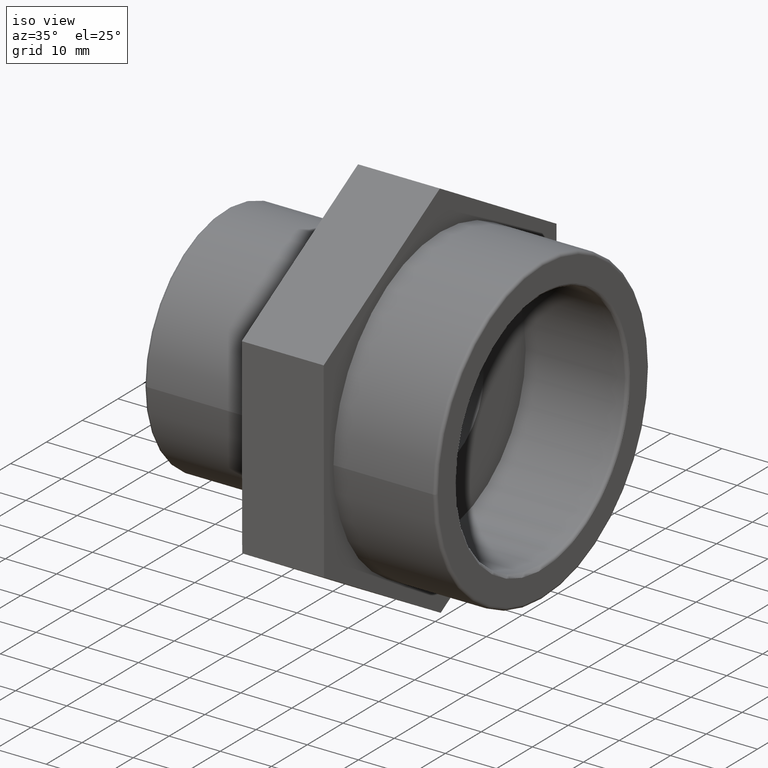
[diagram: clean part render]
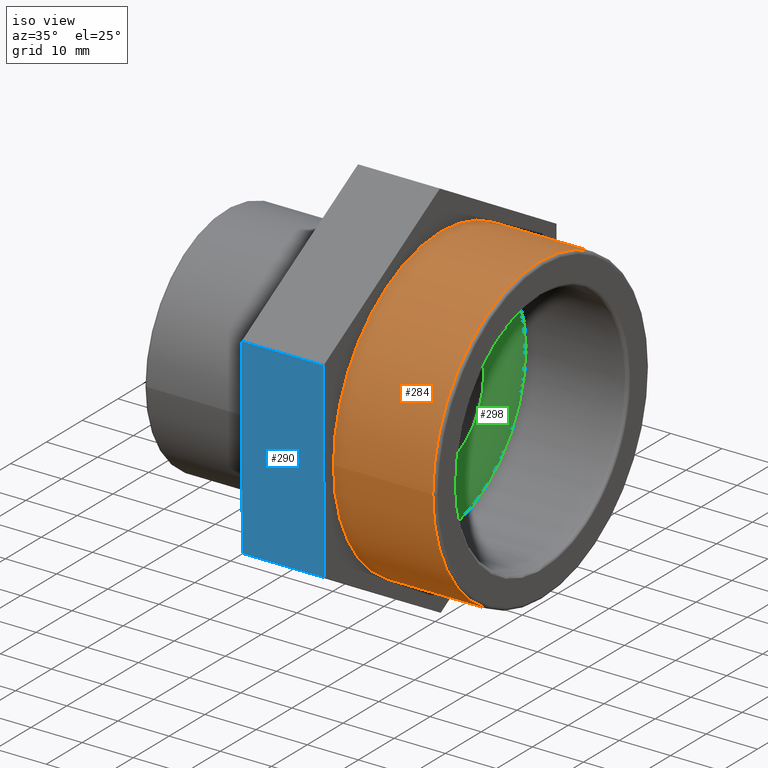
[diagram: same view with three faces highlighted in distinct colors, each labeled with its STEP entity id]
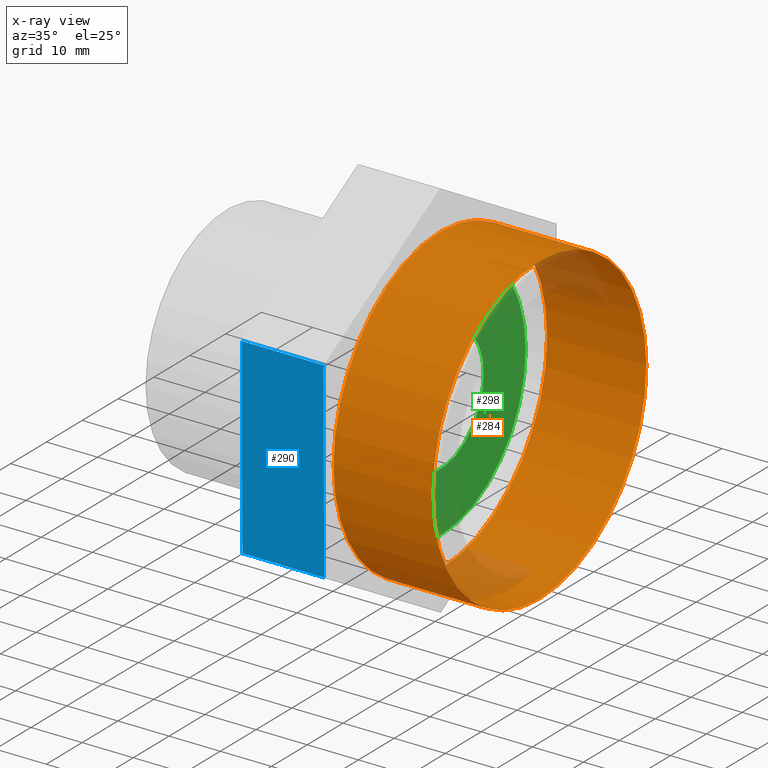
[diagram: x-ray of the same camera — body ghosted, the three highlighted faces saturated]
A machine part, iso view with three faces highlighted in distinct colors.
The next image is the same camera in x-ray (body ghosted, the three faces saturated) — at least one of them is partly hidden behind the body in this view.
Their STEP definitions:

[orange] entity #284 — the highlighted cylindrical surface (bore or boss wall) has radius 29.807 mm, axis along (-1, -0, 0).
#52=CYLINDRICAL_SURFACE('',#312,29.807);
#72=FACE_BOUND('',#113,.T.);
#87=FACE_OUTER_BOUND('',#112,.T.);
#112=EDGE_LOOP('',(#220));
#113=EDGE_LOOP('',(#221));
#144=CIRCLE('',#311,29.807);
#145=CIRCLE('',#313,29.807);
#158=VERTEX_POINT('',#441);
#159=VERTEX_POINT('',#444);
#184=EDGE_CURVE('',#158,#158,#144,.T.);
#185=EDGE_CURVE('',#159,#159,#145,.T.);
#220=ORIENTED_EDGE('',*,*,#185,.F.);
#221=ORIENTED_EDGE('',*,*,#184,.F.);
#284=ADVANCED_FACE('',(#87,#72),#52,.T.);
#311=AXIS2_PLACEMENT_3D('',#442,#356,#357);
#312=AXIS2_PLACEMENT_3D('',#443,#358,#359);
#313=AXIS2_PLACEMENT_3D('',#445,#360,#361);
#356=DIRECTION('center_axis',(1.,1.83697019872103E-16,0.));
#357=DIRECTION('ref_axis',(-1.83907343378626E-16,1.,6.12323399573677E-17));
#358=DIRECTION('center_axis',(-1.,-1.83697019872103E-16,0.));
#359=DIRECTION('ref_axis',(1.46607642484587E-16,-1.,0.));
#360=DIRECTION('center_axis',(-1.,-1.83697019872103E-16,0.));
#361=DIRECTION('ref_axis',(0.,0.,1.));
#441=CARTESIAN_POINT('',(30.40386,-29.807,-5.47545707132777E-15));
#442=CARTESIAN_POINT('Origin',(30.40386,1.12797060906438E-14,0.));
#443=CARTESIAN_POINT('Origin',(21.,9.55224503334936E-15,0.));
#444=CARTESIAN_POINT('',(11.,-29.807,0.));
#445=CARTESIAN_POINT('Origin',(11.,7.71527483462833E-15,0.));

[blue] entity #290 — the highlighted planar face has unit normal (0, -1, -0.003).
#15=LINE('',#466,#33);
#16=LINE('',#468,#34);
#17=LINE('',#470,#35);
#18=LINE('',#471,#36);
#33=VECTOR('',#386,37.5277674973257);
#34=VECTOR('',#387,16.);
#35=VECTOR('',#388,37.5277674973257);
#36=VECTOR('',#389,16.);
#58=PLANE('',#325);
#93=FACE_OUTER_BOUND('',#124,.T.);
#124=EDGE_LOOP('',(#232,#233,#234,#235));
#166=VERTEX_POINT('',#464);
#167=VERTEX_POINT('',#465);
#168=VERTEX_POINT('',#467);
#169=VERTEX_POINT('',#469);
#192=EDGE_CURVE('',#166,#167,#15,.T.);
#193=EDGE_CURVE('',#168,#167,#16,.T.);
#194=EDGE_CURVE('',#168,#169,#17,.T.);
#195=EDGE_CURVE('',#169,#166,#18,.T.);
#232=ORIENTED_EDGE('',*,*,#192,.T.);
#233=ORIENTED_EDGE('',*,*,#193,.F.);
#234=ORIENTED_EDGE('',*,*,#194,.T.);
#235=ORIENTED_EDGE('',*,*,#195,.T.);
#290=ADVANCED_FACE('',(#93),#58,.T.);
#325=AXIS2_PLACEMENT_3D('',#463,#384,#385);
#384=DIRECTION('center_axis',(1.85036358388747E-16,-0.999995609627469,-0.00296322894591864));
#385=DIRECTION('ref_axis',(0.,-0.00296322894591867,0.999995609627469));
#386=DIRECTION('',(-5.44336326564006E-19,0.00296322894591864,-0.999995609627469));
#387=DIRECTION('',(-1.,-1.85037170770858E-16,0.));
#388=DIRECTION('',(5.44336326564006E-19,-0.00296322894591864,0.999995609627469));
#389=DIRECTION('',(-1.,-1.85037170770858E-16,0.));
#463=CARTESIAN_POINT('Origin',(11.,-32.4442556294309,-18.8601063089654));
#464=CARTESIAN_POINT('',(-4.99999999999999,-32.5554589963547,18.6674964274807));
#465=CARTESIAN_POINT('',(-4.99999999999999,-32.4442556294309,-18.8601063089654));
#466=CARTESIAN_POINT('',(-4.99999999999999,-32.4720564711618,-9.47820562485388));
#467=CARTESIAN_POINT('',(11.,-32.4442556294309,-18.8601063089654));
#468=CARTESIAN_POINT('',(11.,-32.4442556294309,-18.8601063089654));
#469=CARTESIAN_POINT('',(11.,-32.5554589963546,18.6674964274807));
#470=CARTESIAN_POINT('',(11.,-32.4442556294309,-18.8601063089654));
#471=CARTESIAN_POINT('',(11.,-32.5554589963546,18.6674964274807));

[green] entity #298 — the highlighted planar face has unit normal (1, 0, 0).
#65=PLANE('',#335);
#80=FACE_BOUND('',#135,.T.);
#101=FACE_OUTER_BOUND('',#134,.T.);
#134=EDGE_LOOP('',(#260));
#135=EDGE_LOOP('',(#261));
#143=CIRCLE('',#309,23.8456);
#153=CIRCLE('',#334,12.1164);
#157=VERTEX_POINT('',#438);
#179=VERTEX_POINT('',#503);
#183=EDGE_CURVE('',#157,#157,#143,.T.);
#211=EDGE_CURVE('',#179,#179,#153,.T.);
#260=ORIENTED_EDGE('',*,*,#183,.F.);
#261=ORIENTED_EDGE('',*,*,#211,.T.);
#298=ADVANCED_FACE('',(#101,#80),#65,.T.);
#309=AXIS2_PLACEMENT_3D('',#439,#352,#353);
#334=AXIS2_PLACEMENT_3D('',#504,#420,#421);
#335=AXIS2_PLACEMENT_3D('',#505,#422,#423);
#352=DIRECTION('center_axis',(-1.,-1.83697019872103E-16,0.));
#353=DIRECTION('ref_axis',(0.,0.,1.));
#420=DIRECTION('center_axis',(-1.,-1.83697019872103E-16,0.));
#421=DIRECTION('ref_axis',(0.,0.,1.));
#422=DIRECTION('center_axis',(1.,1.83697019872103E-16,0.));
#423=DIRECTION('ref_axis',(0.,0.,-1.));
#438=CARTESIAN_POINT('',(11.,-23.8456,0.));
#439=CARTESIAN_POINT('Origin',(11.,7.71527483462833E-15,0.));
#503=CARTESIAN_POINT('',(11.,-12.1164,0.));
#504=CARTESIAN_POINT('Origin',(11.,7.71527483462832E-15,0.));
#505=CARTESIAN_POINT('Origin',(11.,-23.8456,0.));